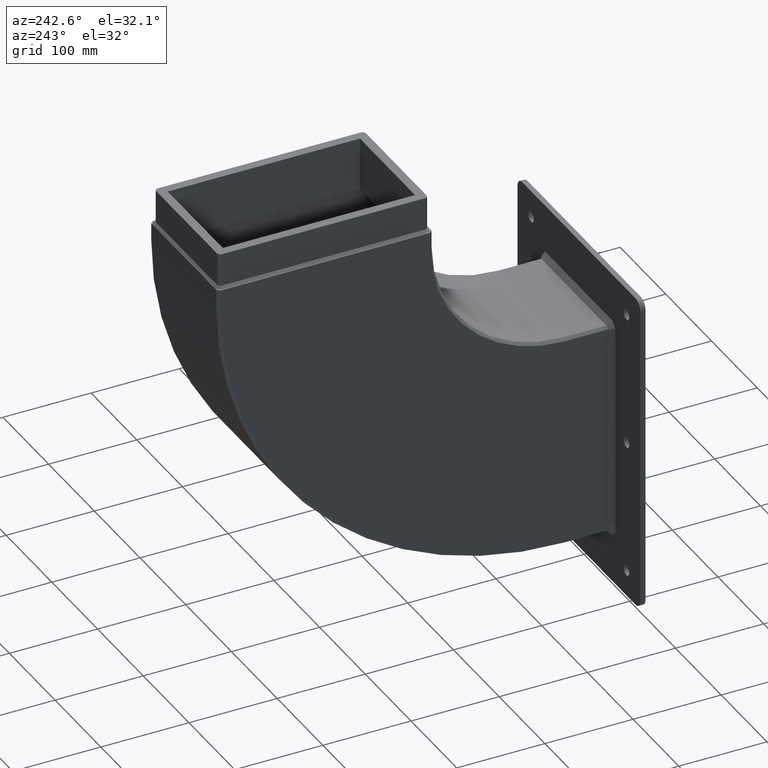
[diagram: clean part render]
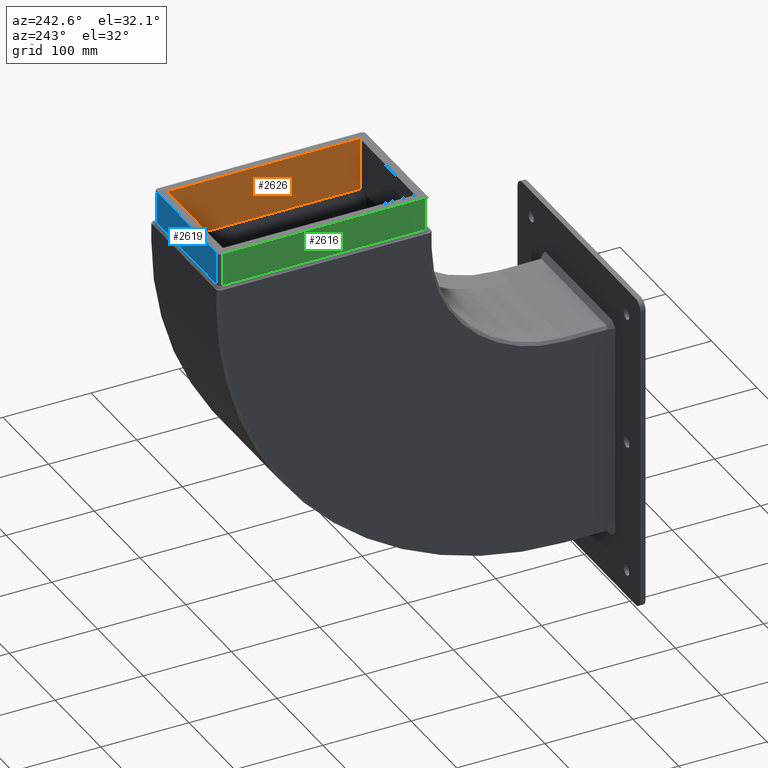
[diagram: same view with three faces highlighted in distinct colors, each labeled with its STEP entity id]
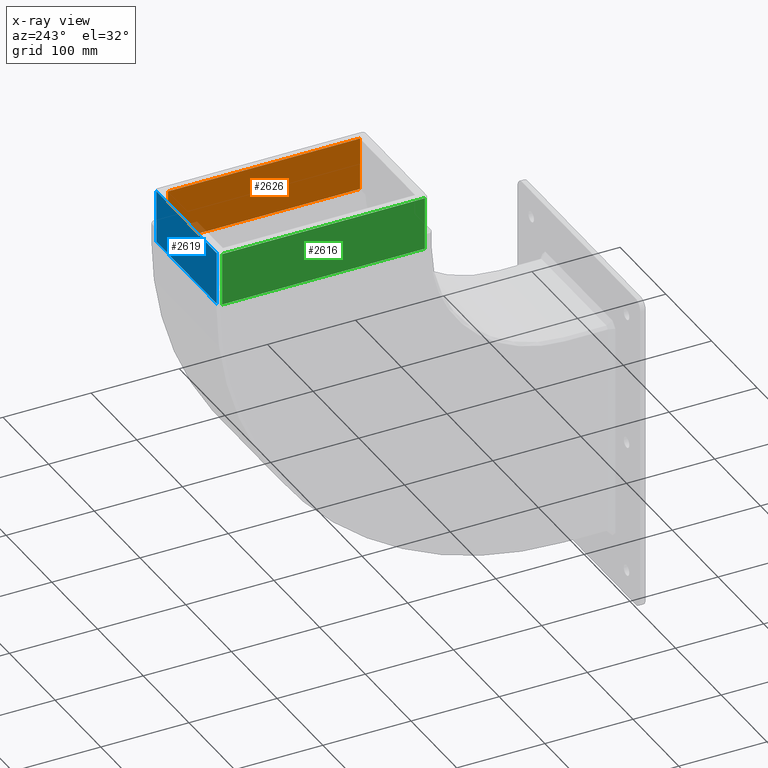
[diagram: x-ray of the same camera — body ghosted, the three highlighted faces saturated]
A machine part, auxiliary view with three faces highlighted in distinct colors.
The next image is the same camera in x-ray (body ghosted, the three faces saturated) — at least one of them is partly hidden behind the body in this view.
Their STEP definitions:

[orange] entity #2626 — the highlighted planar face has unit normal (1, 0, -0).
#264=FACE_OUTER_BOUND('',#431,.T.);
#431=EDGE_LOOP('',(#2345,#2346,#2347,#2348));
#774=LINE('',#4422,#1060);
#786=LINE('',#4451,#1072);
#789=LINE('',#4458,#1075);
#791=LINE('',#4461,#1077);
#1060=VECTOR('',#3677,10.);
#1072=VECTOR('',#3707,10.);
#1075=VECTOR('',#3714,10.);
#1077=VECTOR('',#3718,10.);
#1279=VERTEX_POINT('',#4419);
#1280=VERTEX_POINT('',#4421);
#1288=VERTEX_POINT('',#4449);
#1290=VERTEX_POINT('',#4457);
#1627=EDGE_CURVE('',#1279,#1280,#774,.T.);
#1642=EDGE_CURVE('',#1279,#1288,#786,.T.);
#1645=EDGE_CURVE('',#1280,#1290,#789,.T.);
#1647=EDGE_CURVE('',#1290,#1288,#791,.T.);
#2345=ORIENTED_EDGE('',*,*,#1627,.F.);
#2346=ORIENTED_EDGE('',*,*,#1642,.T.);
#2347=ORIENTED_EDGE('',*,*,#1647,.F.);
#2348=ORIENTED_EDGE('',*,*,#1645,.F.);
#2476=PLANE('',#2970);
#2626=ADVANCED_FACE('',(#264),#2476,.F.);
#2970=AXIS2_PLACEMENT_3D('',#4460,#3716,#3717);
#3677=DIRECTION('',(1.,-8.14842586880849E-17,0.));
#3707=DIRECTION('',(0.,0.,1.));
#3714=DIRECTION('',(0.,0.,1.));
#3716=DIRECTION('center_axis',(-8.14842586880849E-17,-1.,0.));
#3717=DIRECTION('ref_axis',(1.,-8.14842586880849E-17,0.));
#3718=DIRECTION('',(-1.,8.14842586880849E-17,0.));
#4419=CARTESIAN_POINT('',(-109.,-60.25,0.));
#4421=CARTESIAN_POINT('',(109.,-60.25,0.));
#4422=CARTESIAN_POINT('',(-54.5,-60.25,0.));
#4449=CARTESIAN_POINT('',(-109.,-60.25,60.));
#4451=CARTESIAN_POINT('',(-109.,-60.25,0.));
#4457=CARTESIAN_POINT('',(109.,-60.25,60.));
#4458=CARTESIAN_POINT('',(109.,-60.25,0.));
#4460=CARTESIAN_POINT('Origin',(-109.,-60.25,0.));
#4461=CARTESIAN_POINT('',(-54.5,-60.25,60.));

[blue] entity #2619 — the highlighted planar face has unit normal (0, 1, 0).
#257=FACE_OUTER_BOUND('',#424,.T.);
#424=EDGE_LOOP('',(#2317,#2318,#2319,#2320));
#772=LINE('',#4416,#1058);
#777=LINE('',#4429,#1063);
#778=LINE('',#4432,#1064);
#779=LINE('',#4433,#1065);
#1058=VECTOR('',#3673,10.);
#1063=VECTOR('',#3684,10.);
#1064=VECTOR('',#3687,10.);
#1065=VECTOR('',#3688,10.);
#1276=VERTEX_POINT('',#4413);
#1277=VERTEX_POINT('',#4415);
#1282=VERTEX_POINT('',#4427);
#1283=VERTEX_POINT('',#4431);
#1624=EDGE_CURVE('',#1277,#1276,#772,.T.);
#1631=EDGE_CURVE('',#1277,#1282,#777,.T.);
#1632=EDGE_CURVE('',#1283,#1276,#778,.T.);
#1633=EDGE_CURVE('',#1282,#1283,#779,.T.);
#2317=ORIENTED_EDGE('',*,*,#1631,.F.);
#2318=ORIENTED_EDGE('',*,*,#1624,.T.);
#2319=ORIENTED_EDGE('',*,*,#1632,.F.);
#2320=ORIENTED_EDGE('',*,*,#1633,.F.);
#2471=PLANE('',#2961);
#2619=ADVANCED_FACE('',(#257),#2471,.T.);
#2961=AXIS2_PLACEMENT_3D('',#4430,#3685,#3686);
#3673=DIRECTION('',(0.,-1.,0.));
#3684=DIRECTION('',(0.,0.,1.));
#3685=DIRECTION('center_axis',(-1.,0.,0.));
#3686=DIRECTION('ref_axis',(0.,-1.,0.));
#3687=DIRECTION('',(0.,0.,-1.));
#3688=DIRECTION('',(0.,-1.,0.));
#4413=CARTESIAN_POINT('',(-119.,-66.25,0.));
#4415=CARTESIAN_POINT('',(-119.,66.25,0.));
#4416=CARTESIAN_POINT('',(-119.,70.25,0.));
#4427=CARTESIAN_POINT('',(-119.,66.25,60.));
#4429=CARTESIAN_POINT('',(-119.,66.25,0.));
#4430=CARTESIAN_POINT('Origin',(-119.,70.25,0.));
#4431=CARTESIAN_POINT('',(-119.,-66.25,60.));
#4432=CARTESIAN_POINT('',(-119.,-66.25,0.));
#4433=CARTESIAN_POINT('',(-119.,70.25,60.));

[green] entity #2616 — the highlighted planar face has unit normal (-1, 0, 0).
#254=FACE_OUTER_BOUND('',#420,.T.);
#420=EDGE_LOOP('',(#2297,#2298,#2299,#2300));
#766=LINE('',#4399,#1052);
#767=LINE('',#4402,#1053);
#768=LINE('',#4404,#1054);
#769=LINE('',#4405,#1055);
#1052=VECTOR('',#3659,10.);
#1053=VECTOR('',#3662,10.);
#1054=VECTOR('',#3663,10.);
#1055=VECTOR('',#3664,10.);
#1267=VERTEX_POINT('',#4392);
#1270=VERTEX_POINT('',#4397);
#1271=VERTEX_POINT('',#4401);
#1272=VERTEX_POINT('',#4403);
#1616=EDGE_CURVE('',#1270,#1267,#766,.T.);
#1617=EDGE_CURVE('',#1270,#1271,#767,.T.);
#1618=EDGE_CURVE('',#1272,#1271,#768,.T.);
#1619=EDGE_CURVE('',#1267,#1272,#769,.T.);
#2297=ORIENTED_EDGE('',*,*,#1616,.F.);
#2298=ORIENTED_EDGE('',*,*,#1617,.T.);
#2299=ORIENTED_EDGE('',*,*,#1618,.F.);
#2300=ORIENTED_EDGE('',*,*,#1619,.F.);
#2469=PLANE('',#2954);
#2616=ADVANCED_FACE('',(#254),#2469,.T.);
#2954=AXIS2_PLACEMENT_3D('',#4400,#3660,#3661);
#3659=DIRECTION('',(0.,0.,1.));
#3660=DIRECTION('center_axis',(0.,1.,0.));
#3661=DIRECTION('ref_axis',(-1.,0.,0.));
#3662=DIRECTION('',(-1.,0.,0.));
#3663=DIRECTION('',(0.,0.,-1.));
#3664=DIRECTION('',(-1.,0.,0.));
#4392=CARTESIAN_POINT('',(115.,70.25,60.));
#4397=CARTESIAN_POINT('',(115.,70.25,0.));
#4399=CARTESIAN_POINT('',(115.,70.25,0.));
#4400=CARTESIAN_POINT('Origin',(119.,70.25,0.));
#4401=CARTESIAN_POINT('',(-115.,70.25,0.));
#4402=CARTESIAN_POINT('',(119.,70.25,0.));
#4403=CARTESIAN_POINT('',(-115.,70.25,60.));
#4404=CARTESIAN_POINT('',(-115.,70.25,0.));
#4405=CARTESIAN_POINT('',(119.,70.25,60.));